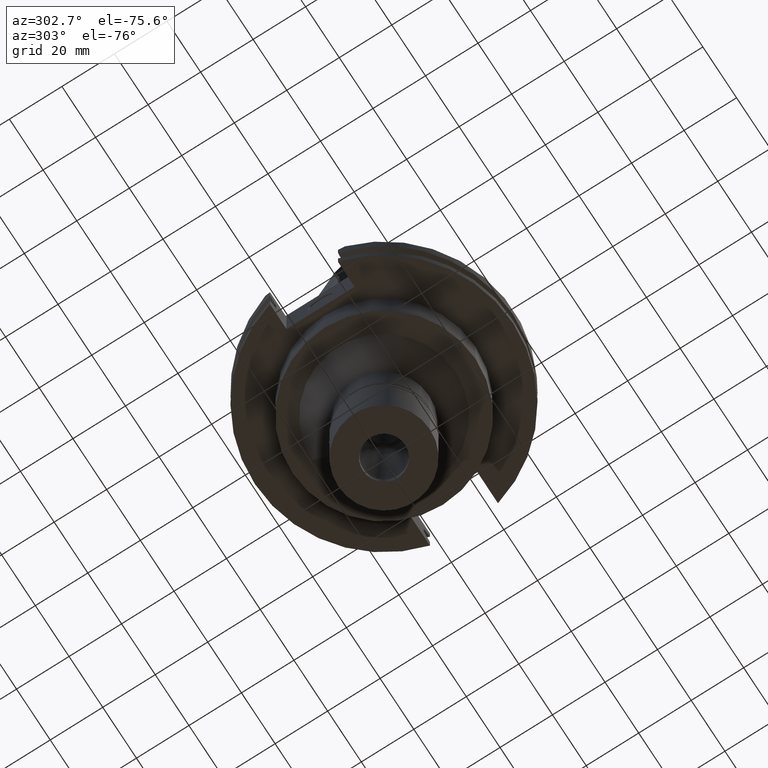
[diagram: clean part render]
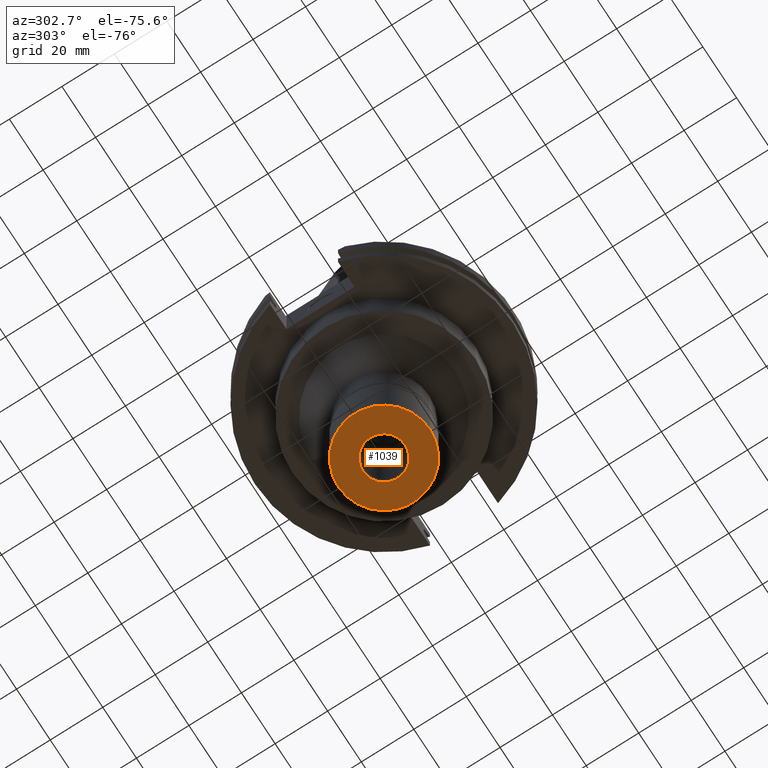
[diagram: same view with one face highlighted and labeled with its STEP entity id]
A machine part, auxiliary view. The second image highlights one B-rep face of the part: STEP entity #1039.
In plain terms, the highlighted planar face has unit normal (0, 0, -1).
Its self-contained STEP definition (entity closure, byte-faithful):
#181 = DIRECTION ( 'NONE',  ( 0.0000000000000000000, 0.0000000000000000000, -1.000000000000000000 ) ) ;
#199 = VERTEX_POINT ( 'NONE', #1563 ) ;
#355 = AXIS2_PLACEMENT_3D ( 'NONE', #409, #2199, #2504 ) ;
#390 = DIRECTION ( 'NONE',  ( 0.0000000000000000000, 0.0000000000000000000, -1.000000000000000000 ) ) ;
#409 = CARTESIAN_POINT ( 'NONE',  ( 0.0000000000000000000, 0.0000000000000000000, -26.70000000000000284 ) ) ;
#663 = PLANE ( 'NONE',  #805 ) ;
#705 = CIRCLE ( 'NONE', #973, 17.50000000000000000 ) ;
#710 = DIRECTION ( 'NONE',  ( 0.0000000000000000000, -1.000000000000000000, 0.0000000000000000000 ) ) ;
#805 = AXIS2_PLACEMENT_3D ( 'NONE', #1200, #390, #2220 ) ;
#963 = DIRECTION ( 'NONE',  ( 0.0000000000000000000, 1.000000000000000000, 0.0000000000000000000 ) ) ;
#973 = AXIS2_PLACEMENT_3D ( 'NONE', #1122, #1850, #1603 ) ;
#1039 = ADVANCED_FACE ( 'NONE', ( #1218, #1143 ), #663, .T. ) ;
#1085 = CIRCLE ( 'NONE', #1297, 8.000000000000000000 ) ;
#1122 = CARTESIAN_POINT ( 'NONE',  ( 0.0000000000000000000, 0.0000000000000000000, -26.70000000000000284 ) ) ;
#1143 = FACE_BOUND ( 'NONE', #2995, .T. ) ;
#1200 = CARTESIAN_POINT ( 'NONE',  ( 0.0000000000000000000, 0.0000000000000000000, -26.70000000000000284 ) ) ;
#1209 = DIRECTION ( 'NONE',  ( 0.0000000000000000000, 0.0000000000000000000, -1.000000000000000000 ) ) ;
#1218 = FACE_OUTER_BOUND ( 'NONE', #2961, .T. ) ;
#1297 = AXIS2_PLACEMENT_3D ( 'NONE', #2746, #1209, #710 ) ;
#1563 = CARTESIAN_POINT ( 'NONE',  ( 0.0000000000000000000, -17.50000000000000000, -26.70000000000000284 ) ) ;
#1603 = DIRECTION ( 'NONE',  ( 0.0000000000000000000, -1.000000000000000000, 0.0000000000000000000 ) ) ;
#1618 = EDGE_CURVE ( 'NONE', #2940, #199, #2339, .T. ) ;
#1623 = ORIENTED_EDGE ( 'NONE', *, *, #1618, .F. ) ;
#1727 = CARTESIAN_POINT ( 'NONE',  ( 0.0000000000000000000, -8.000000000000000000, -26.70000000000000284 ) ) ;
#1850 = DIRECTION ( 'NONE',  ( 0.0000000000000000000, 0.0000000000000000000, 1.000000000000000000 ) ) ;
#1955 = ORIENTED_EDGE ( 'NONE', *, *, #3154, .F. ) ;
#1957 = ORIENTED_EDGE ( 'NONE', *, *, #2750, .F. ) ;
#1982 = ORIENTED_EDGE ( 'NONE', *, *, #2727, .F. ) ;
#2143 = CIRCLE ( 'NONE', #3224, 8.000000000000000000 ) ;
#2199 = DIRECTION ( 'NONE',  ( 0.0000000000000000000, 0.0000000000000000000, 1.000000000000000000 ) ) ;
#2220 = DIRECTION ( 'NONE',  ( 0.0000000000000000000, -1.000000000000000000, 0.0000000000000000000 ) ) ;
#2228 = CARTESIAN_POINT ( 'NONE',  ( 0.0000000000000000000, 0.0000000000000000000, -26.70000000000000284 ) ) ;
#2339 = CIRCLE ( 'NONE', #355, 17.50000000000000000 ) ;
#2408 = VERTEX_POINT ( 'NONE', #1727 ) ;
#2504 = DIRECTION ( 'NONE',  ( 0.0000000000000000000, 1.000000000000000000, 0.0000000000000000000 ) ) ;
#2576 = VERTEX_POINT ( 'NONE', #2624 ) ;
#2601 = CARTESIAN_POINT ( 'NONE',  ( 0.0000000000000000000, 17.50000000000000000, -26.70000000000000284 ) ) ;
#2624 = CARTESIAN_POINT ( 'NONE',  ( 0.0000000000000000000, 8.000000000000000000, -26.70000000000000284 ) ) ;
#2727 = EDGE_CURVE ( 'NONE', #2408, #2576, #1085, .T. ) ;
#2746 = CARTESIAN_POINT ( 'NONE',  ( 0.0000000000000000000, 0.0000000000000000000, -26.70000000000000284 ) ) ;
#2750 = EDGE_CURVE ( 'NONE', #2576, #2408, #2143, .T. ) ;
#2940 = VERTEX_POINT ( 'NONE', #2601 ) ;
#2961 = EDGE_LOOP ( 'NONE', ( #1623, #1955 ) ) ;
#2995 = EDGE_LOOP ( 'NONE', ( #1957, #1982 ) ) ;
#3154 = EDGE_CURVE ( 'NONE', #199, #2940, #705, .T. ) ;
#3224 = AXIS2_PLACEMENT_3D ( 'NONE', #2228, #181, #963 ) ;